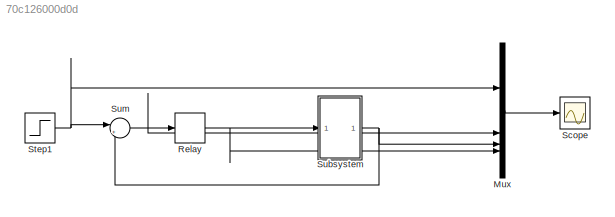
MODEL slx_70c126000d0d
KIND model
CONFIG AbsTol = auto
CONFIG EnableMultiTasking = off
CONFIG FixedStep = auto
CONFIG MaxStep = auto
CONFIG MinStep = auto
CONFIG RelTol = 1e-3
CONFIG SampleTimeConstraint = Unconstrained
CONFIG SolverName = VariableStepAuto
CONFIG StartTime = 0.0
CONFIG StopTime = 50.0
BLOCK [Mux] Mux
  DisplayOption = bar
BLOCK [Relay] Relay
  OffSwitchValue = -5
  OnOutputValue = 30
  OnSwitchValue = 5
BLOCK [Scope] Scope
  Floating = off
  NumInputPorts = 1
  ScopeSpecificationString = Simulink.scopes.TimeScopeBlockCfg('CurrentConfiguration', extmgr.ConfigurationSet(extmgr.Configuration('Core','General UI',true),extmgr.Configuration('Core','Source UI',true),extmgr.Configuration('Sources','WiredSimulink',true),extmgr.Configuration('Visuals','Time Domain',true,'SerializedDisplays',{struct('MinYLimReal','-11.88378','MaxYLimReal','34.65375','YLabelReal','','MinYLimMag','0.00000','Ma...<+1412ch>
BLOCK [Step] Step1
  After = 20
  Before = 0.5
  SampleTime = 0
  Time = 0.1
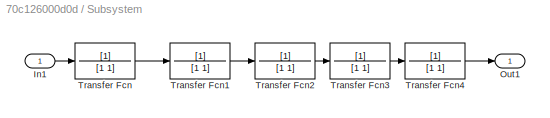
BLOCK [SubSystem] Subsystem
BLOCK [Inport] Subsystem/In1
BLOCK [Outport] Subsystem/Out1
BLOCK [TransferFcn] Subsystem/Transfer Fcn
  Denominator = [1 1]
BLOCK [TransferFcn] Subsystem/Transfer Fcn1
  Denominator = [1 1]
BLOCK [TransferFcn] Subsystem/Transfer Fcn2
  Denominator = [1 1]
BLOCK [TransferFcn] Subsystem/Transfer Fcn3
  Denominator = [1 1]
BLOCK [TransferFcn] Subsystem/Transfer Fcn4
  Denominator = [1 1]
BLOCK [Sum] Sum
  Inputs = |+-
LINE Mux:1 -> Scope:1
NET Relay:1 -> Mux:4, Subsystem:1
NET Step1:1 -> Mux:1, Sum:1
LINE Subsystem/In1:1 -> Subsystem/Transfer Fcn:1
LINE Subsystem/Transfer Fcn1:1 -> Subsystem/Transfer Fcn2:1
LINE Subsystem/Transfer Fcn2:1 -> Subsystem/Transfer Fcn3:1
LINE Subsystem/Transfer Fcn3:1 -> Subsystem/Transfer Fcn4:1
LINE Subsystem/Transfer Fcn4:1 -> Subsystem/Out1:1
LINE Subsystem/Transfer Fcn:1 -> Subsystem/Transfer Fcn1:1
NET Subsystem:1 -> Mux:3, Sum:2
NET Sum:1 -> Mux:2, Relay:1
note: NET lines group one-source signal fan-out (src -> all destinations, sorted); 1:1 wires keep LINE
